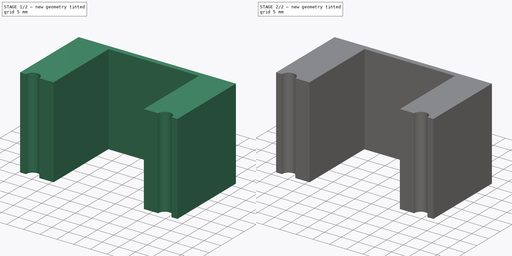
[diagram: build sequence overview — one tinted view per stage of 2, left to right]
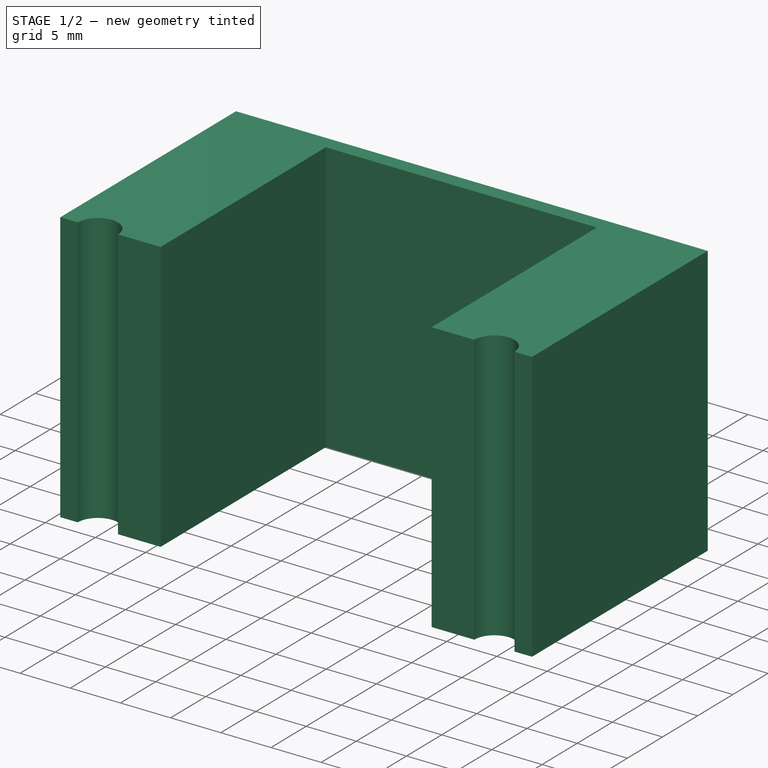
[diagram: stage 1 of 2 — iso view after this stage's code; geometry added in this stage tinted green]
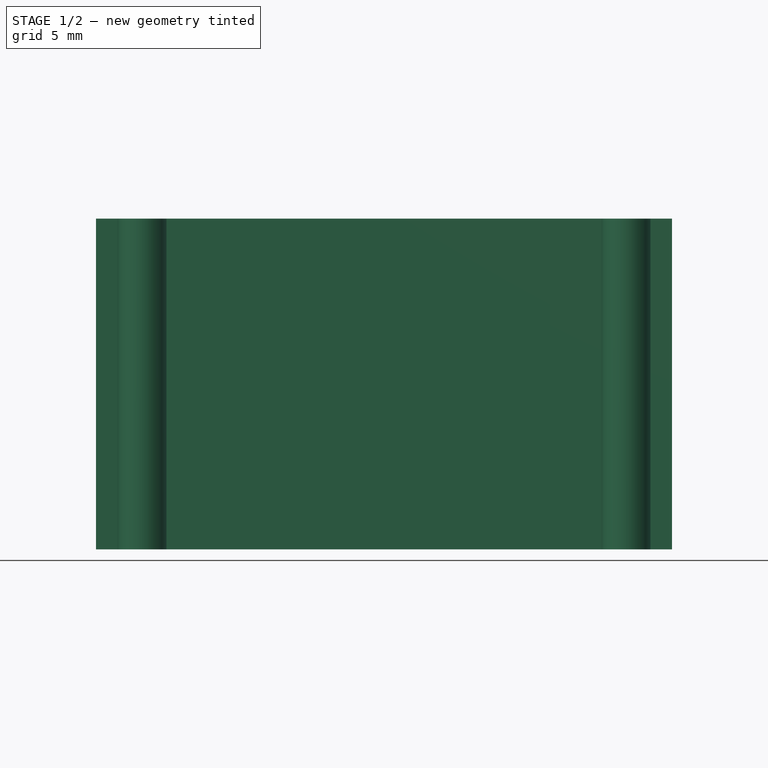
[diagram: stage 1 of 2 — front view after this stage's code; geometry added in this stage tinted green]
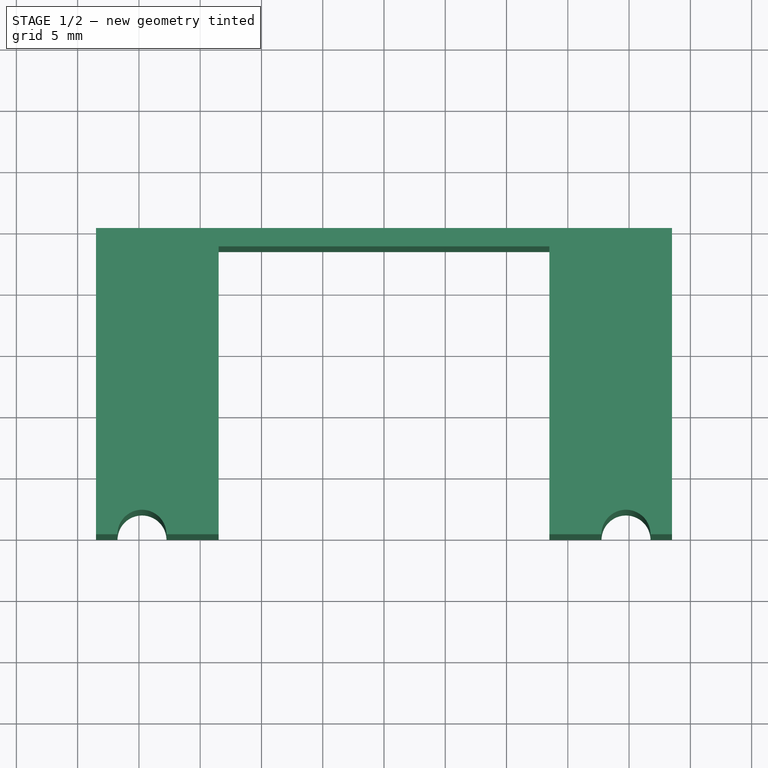
[diagram: stage 1 of 2 — top view after this stage's code; geometry added in this stage tinted green]
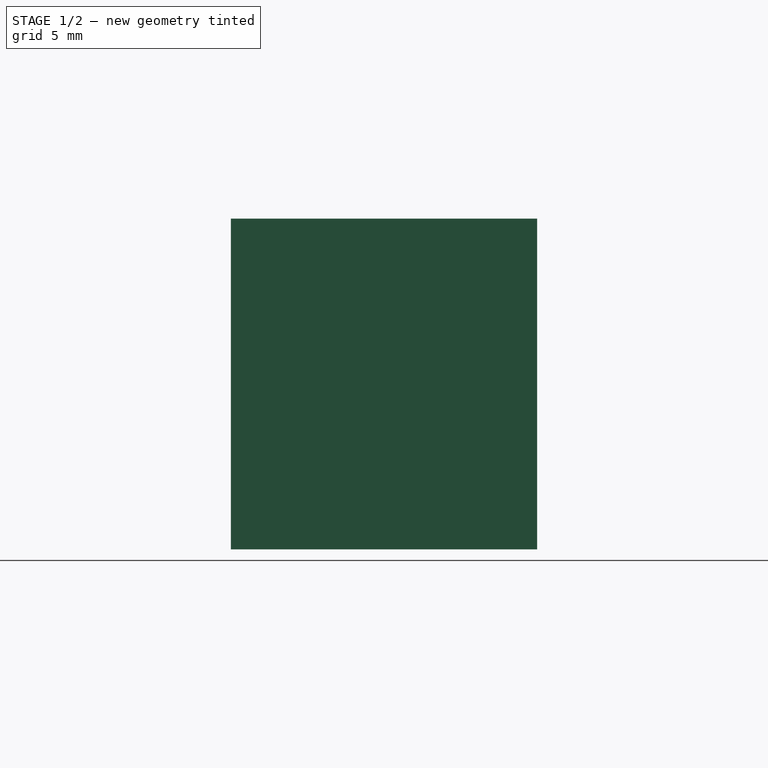
[diagram: stage 1 of 2 — right view after this stage's code; geometry added in this stage tinted green]
FCSTD DOCUMENT  (FreeCAD 0.18R14090 (Git))
Label: IECSocketClip
License: All rights reserved
LicenseURL: http://en.wikipedia.org/wiki/All_rights_reserved
objects: Sketcher::SketchObject×3, PartDesign::Pocket×2, PartDesign::Pad×1, PartDesign::Plane×1, PartDesign::Body×1, App::Part×1
note: 11 computed .brp shape members not serialized (recipe doc carries the construction recipe); baked Part::Feature solids carry a one-line shape summary decoded from their .brp

FEATURE [Sketcher::SketchObject] Sketch  label="ClipBaseSketch"
  MapMode = 5
  Support = -> [XY_Plane001]
  sketch-geometry (8):
    g0: LineSegment StartX=13.5 StartY=0 StartZ=0 EndX=13.5 EndY=23.5 EndZ=0
    g1: LineSegment StartX=13.5 StartY=23.5 StartZ=0 EndX=-13.5 EndY=23.5 EndZ=0
    g2: LineSegment StartX=-13.5 StartY=23.5 StartZ=0 EndX=-13.5 EndY=0 EndZ=0
    g3: LineSegment StartX=-23.5 StartY=25 StartZ=0 EndX=23.5 EndY=25 EndZ=0
    g4: LineSegment StartX=23.5 StartY=25 StartZ=0 EndX=23.5 EndY=0 EndZ=0
    g5: LineSegment StartX=23.5 StartY=0 StartZ=0 EndX=13.5 EndY=0 EndZ=0
    g6: LineSegment StartX=-23.5 StartY=25 StartZ=0 EndX=-23.5 EndY=0 EndZ=0
    g7: LineSegment StartX=-23.5 StartY=0 StartZ=0 EndX=-13.5 EndY=0 EndZ=0
  constraints (22):
    c: Coincident(g0,g1)
    c: Coincident(g1,g2)
    c: Vertical(g0)
    c: Vertical(g2)
    c: PointOnObject(g2,g-1)
    c: Symmetric(g0,g1,g-2)
    c: Distance(g1) = 27
    c: Distance(g2) = 23.5
    c: PointOnObject(g0,g-1)
    c: Symmetric(g3,g3,g-2)
    c: Coincident(g4,g3)
    c: PointOnObject(g4,g-1)
    c: Coincident(g5,g4)
    c: Coincident(g5,g0)
    c: Coincident(g6,g3)
    c: PointOnObject(g6,g-1)
    c: Vertical(g6)
    c: Coincident(g7,g6)
    c: Coincident(g7,g2)
    c: Vertical(g4)
    c: Distance(g3) = 47
    c: Distance(g4) = 25
FEATURE [PartDesign::Pad] Pad  label="ClipBasePad"
  Length = 27
  Length2 = 100
  Profile = -> Sketch
  Type = 0
FEATURE [Sketcher::SketchObject] Sketch001  label="ClipSideScrewsSketch"
  MapMode = 5
  Support = -> [XY_Plane001]
  sketch-geometry (2):
    g0: Circle CenterX=-19.75 CenterY=0 CenterZ=0 NormalX=0 NormalY=0 NormalZ=1 AngleXU=0 Radius=2
    g1: Circle CenterX=19.75 CenterY=0 CenterZ=0 NormalX=0 NormalY=0 NormalZ=1 AngleXU=0 Radius=2
  constraints (5):
    c: PointOnObject(g0,g-1)
    c: Symmetric(g1,g0,g-2)
    c: Equal(g0,g1)
    c: Radius(g0) = 2
    c: Distance(g0,g1) = 39.5
FEATURE [PartDesign::Pocket] Pocket  label="ClipSideScrewsPocket"
  BaseFeature = -> Pad
  Length = 5
  Length2 = 100
  Profile = -> Sketch001
  Reversed = true
  Type = 1
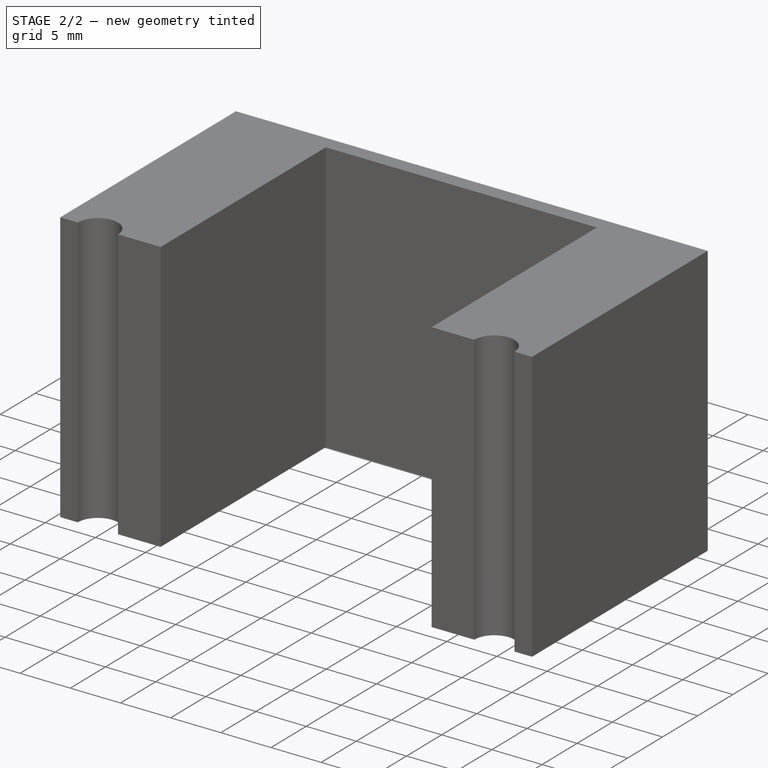
[diagram: stage 2 of 2 — iso view after this stage's code; geometry added in this stage tinted green]
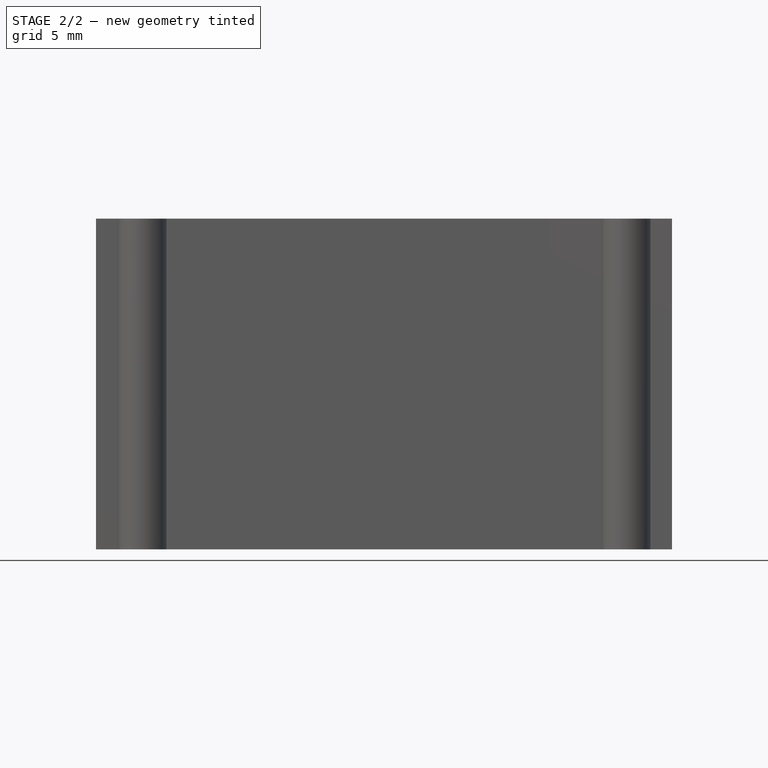
[diagram: stage 2 of 2 — front view after this stage's code; geometry added in this stage tinted green]
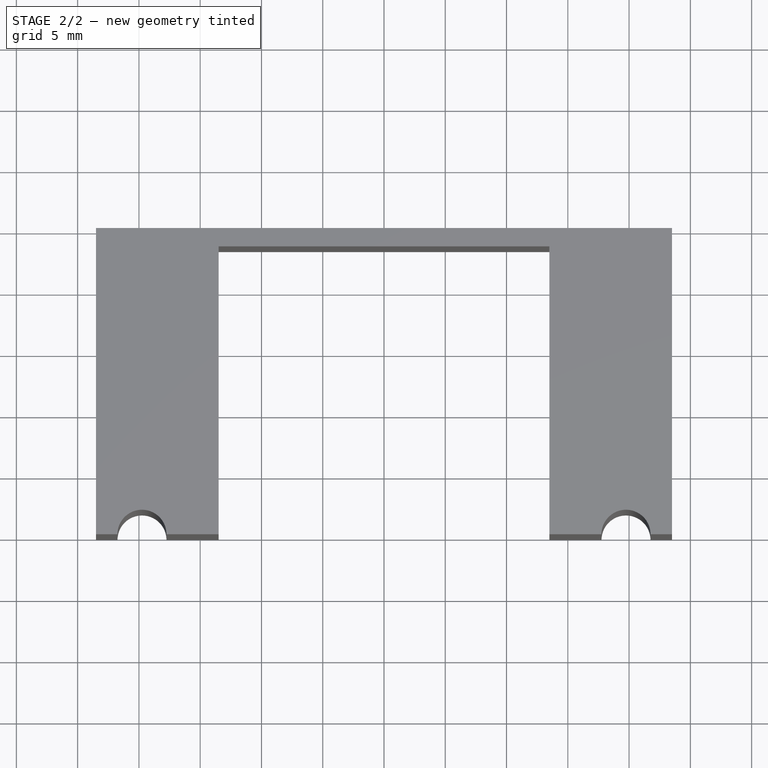
[diagram: stage 2 of 2 — top view after this stage's code; geometry added in this stage tinted green]
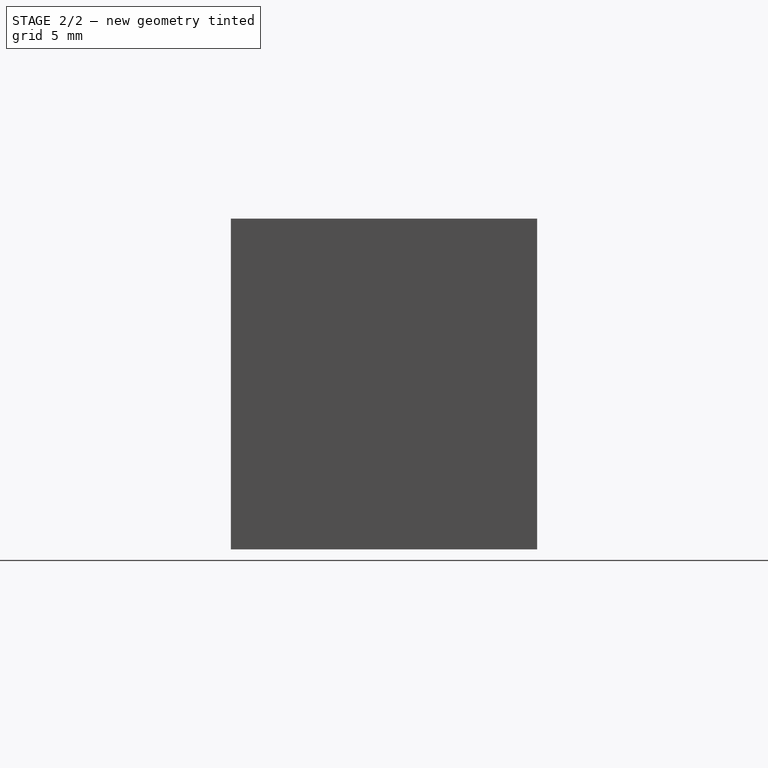
[diagram: stage 2 of 2 — right view after this stage's code; geometry added in this stage tinted green]
FEATURE [PartDesign::Plane] DatumPlane  label="ClipTopPlane"
  AttachmentOffset = pos=(0,0,-25) rot=(0,0,1;0rad)
  MapMode = 5
  Placement = pos=(0,25,0) rot=(1,0,0;1.5708rad)
  Support = -> [XZ_Plane001]
FEATURE [Sketcher::SketchObject] Sketch002  label="ClipTopScrewsSketch"
  MapMode = 5
  Placement = pos=(0,25,0) rot=(1,0,0;1.5708rad)
  Support = -> [DatumPlane]
  sketch-geometry (2):
    g0: Circle CenterX=-18.25 CenterY=5 CenterZ=0 NormalX=0 NormalY=0 NormalZ=1 AngleXU=0 Radius=1.45
    g1: Circle CenterX=18.25 CenterY=5 CenterZ=0 NormalX=0 NormalY=0 NormalZ=1 AngleXU=0 Radius=1.45
  constraints (5):
    c: Symmetric(g1,g0,g-2)
    c: Equal(g1,g0)
    c: Radius(g0) = 1.45
    c: Distance(g0,g1) = 36.5
    c: Distance(g0,g-1) = 5
FEATURE [PartDesign::Pocket] Pocket001  label="ClipTopScrewsPocket"
  BaseFeature = -> Pocket
  Length = 10
  Length2 = 100
  Profile = -> Sketch002
  Reversed = true
  Type = 0
FEATURE [PartDesign::Body] Body  label="SocketClipBody"
  Group = -> [Sketch,Pad,Sketch001,Pocket,DatumPlane,Sketch002,Pocket001]
  Origin = -> Origin001
  Tip = -> Pocket001
FEATURE [App::Part] Part  label="SocketClipPart"
  Group = -> [Body]
  License = CC BY 3.0
  LicenseURL = http://creativecommons.org/licenses/by/3.0/
  Origin = -> Origin
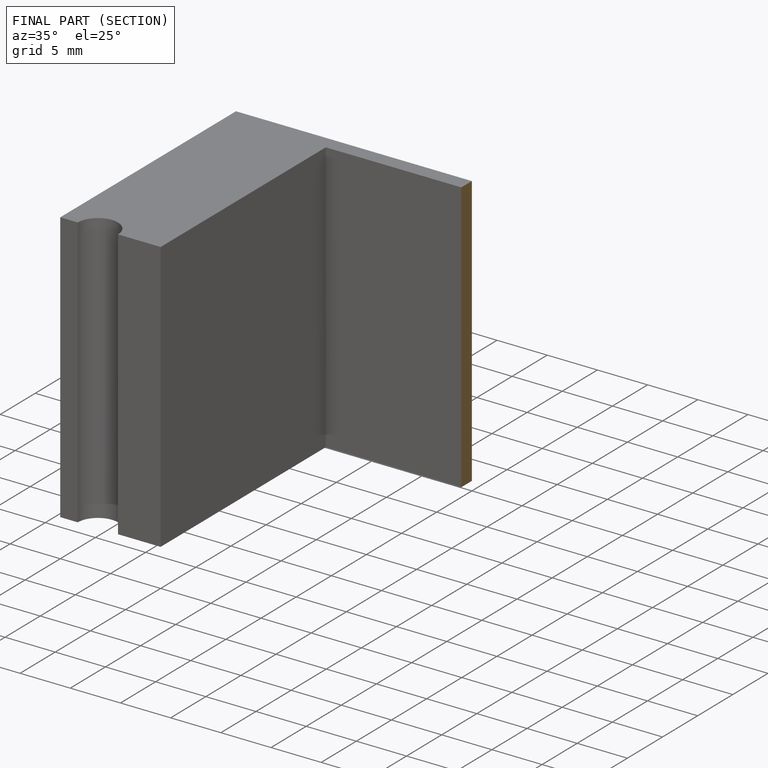
[diagram: finished part — half-section view (interior)]
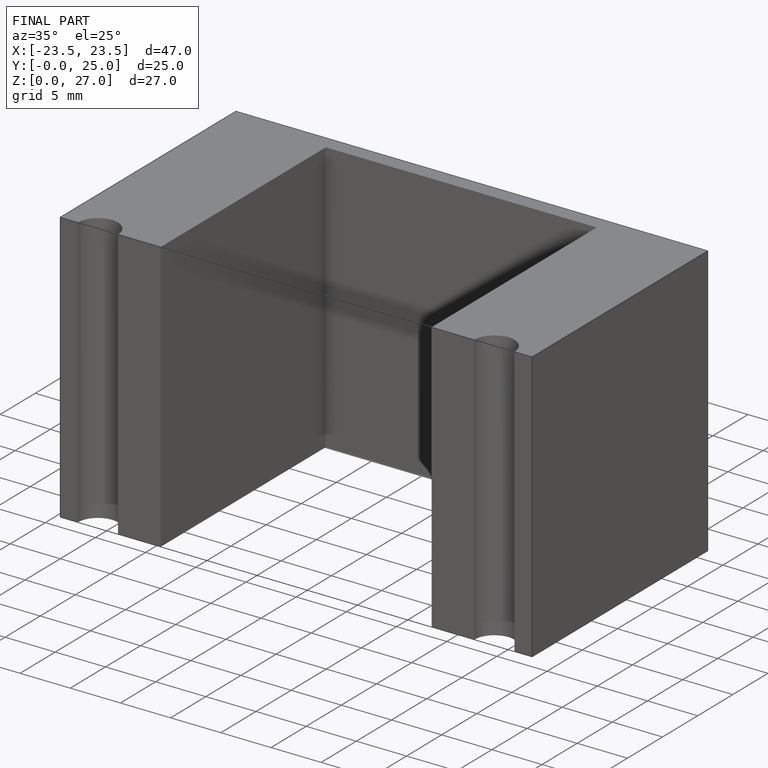
[diagram: finished part — iso view with bounding-box wireframe]
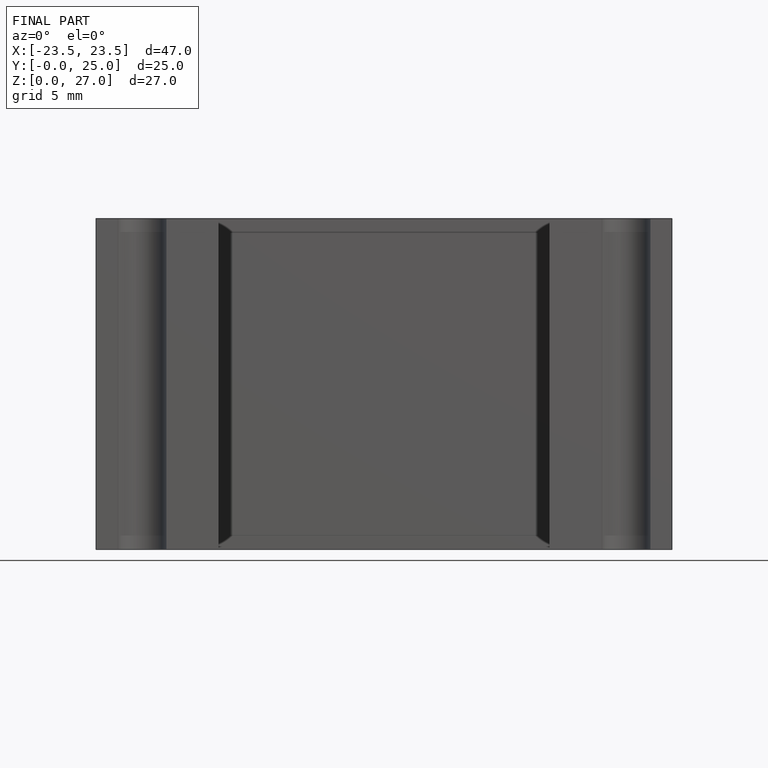
[diagram: finished part — front view with bounding-box wireframe]
